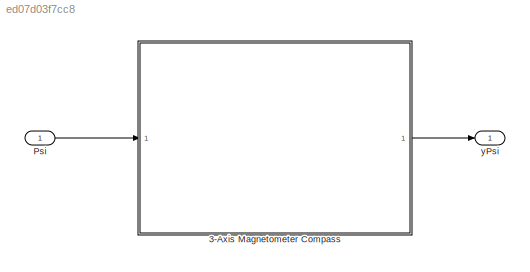
MODEL slx_ed07d03f7cc8
KIND model
CONFIG AbsTol = auto
CONFIG EnableMultiTasking = off
CONFIG FixedStep = auto
CONFIG MaxStep = auto
CONFIG MinStep = auto
CONFIG RelTol = 1e-3
CONFIG SampleTimeConstraint = Unconstrained
CONFIG Solver = VariableStepAuto
CONFIG SolverName = VariableStepAuto
CONFIG StartTime = 0.0
CONFIG StopTime = 10.0
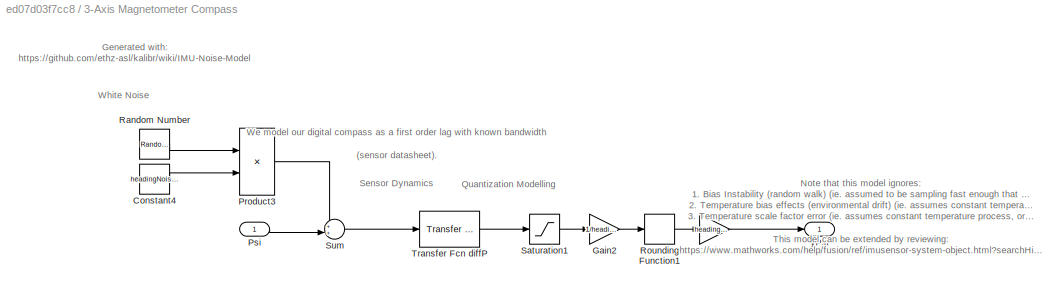
BLOCK [SubSystem] 3-Axis Magnetometer Compass
  Ports = [1, 1]
  RequestExecContextInheritance = off
BLOCK [Constant] 3-Axis Magnetometer Compass/Constant4
  Value = headingNoiseDensity*(1/sqrt(SampleTime))
BLOCK [Gain] 3-Axis Magnetometer Compass/Gain2
  Gain = 1/headingResolution
  OutDataTypeStr = Inherit: Inherit via internal rule
  ParamDataTypeStr = Inherit: Inherit via internal rule
  SaturateOnIntegerOverflow = off
BLOCK [Gain] 3-Axis Magnetometer Compass/Gain3
  Gain = headingResolution
  OutDataTypeStr = Inherit: Inherit via internal rule
  ParamDataTypeStr = Inherit: Inherit via internal rule
  SaturateOnIntegerOverflow = off
BLOCK [Product] 3-Axis Magnetometer Compass/Product3
  InputSameDT = off
  OutDataTypeStr = Inherit: Inherit via internal rule
  Ports = [2, 1]
  RndMeth = Floor
  SaturateOnIntegerOverflow = off
BLOCK [Inport] 3-Axis Magnetometer Compass/Psi
  IconDisplay = Port number
BLOCK [RandomNumber] 3-Axis Magnetometer Compass/Random Number
  SampleTime = SampleTime
BLOCK [Rounding] 3-Axis Magnetometer Compass/Rounding Function1
BLOCK [Saturate] 3-Axis Magnetometer Compass/Saturation1
  InputPortMap = u0
  LowerLimit = headingLowerSaturation
  Ports = [1, 1]
  UpperLimit = headingUpperSaturation
BLOCK [Sum] 3-Axis Magnetometer Compass/Sum
  IconShape = round
  InputSameDT = off
  Inputs = ++|
  OutDataTypeStr = Inherit: Inherit via internal rule
  Ports = [2, 1]
  SaturateOnIntegerOverflow = off
BLOCK [Reference] 3-Axis Magnetometer Compass/Transfer Fcn diffP  REF=simulink_extras/Additional
Linear/Transfer Fcn
(with initial outputs)
  Ports = [1, 1]
  SourceBlock = simulink_extras/Additional\nLinear/Transfer Fcn\n(with initial outputs)
  SourceProductBaseCode = SL
  SourceProductName = Simulink
  SourceType = Transfer Function with Initial Outputs
BLOCK [Outport] 3-Axis Magnetometer Compass/yPsi
  IconDisplay = Port number
BLOCK [Inport] Psi
  IconDisplay = Port number
BLOCK [Outport] yPsi
  IconDisplay = Port number
ANNOTATION 3-Axis Magnetometer Compass: Note that this model ignores: 1. Bias Instability (random walk) (ie. assumed to be sampling fast enough that this isn't the dominant noise) 2. Temperature bias effects (environmental drift) (ie. assumes constant temperature process, or adjusted for independently) 3. Temperature scale factor error (ie. assumes constant temperature process, or adjusted for independently) This model can be extended b...<+129ch>
ANNOTATION 3-Axis Magnetometer Compass: Generated with: https://github.com/ethz-asl/kalibr/wiki/IMU-Noise-Model
ANNOTATION 3-Axis Magnetometer Compass: Quantization Modelling
ANNOTATION 3-Axis Magnetometer Compass: Sensor Dynamics
ANNOTATION 3-Axis Magnetometer Compass: We model our digital compass as a first order lag with known bandwidth (sensor datasheet).
ANNOTATION 3-Axis Magnetometer Compass: White Noise
LINE 3-Axis Magnetometer Compass/Constant4:1 -> 3-Axis Magnetometer Compass/Product3:2
LINE 3-Axis Magnetometer Compass/Gain2:1 -> 3-Axis Magnetometer Compass/Rounding Function1:1
LINE 3-Axis Magnetometer Compass/Gain3:1 -> 3-Axis Magnetometer Compass/yPsi:1
LINE 3-Axis Magnetometer Compass/Product3:1 -> 3-Axis Magnetometer Compass/Sum:1
LINE 3-Axis Magnetometer Compass/Psi:1 -> 3-Axis Magnetometer Compass/Sum:2
LINE 3-Axis Magnetometer Compass/Random Number:1 -> 3-Axis Magnetometer Compass/Product3:1
LINE 3-Axis Magnetometer Compass/Rounding Function1:1 -> 3-Axis Magnetometer Compass/Gain3:1
LINE 3-Axis Magnetometer Compass/Saturation1:1 -> 3-Axis Magnetometer Compass/Gain2:1
LINE 3-Axis Magnetometer Compass/Sum:1 -> 3-Axis Magnetometer Compass/Transfer Fcn diffP:1
LINE 3-Axis Magnetometer Compass/Transfer Fcn diffP:1 -> 3-Axis Magnetometer Compass/Saturation1:1
LINE 3-Axis Magnetometer Compass:1 -> yPsi:1
LINE Psi:1 -> 3-Axis Magnetometer Compass:1
